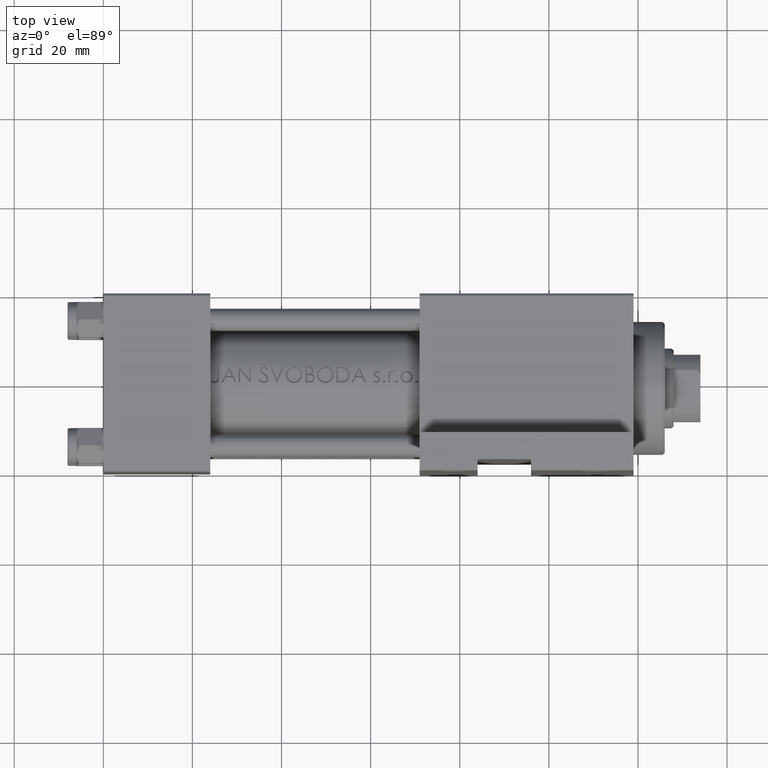
[diagram: clean part render]
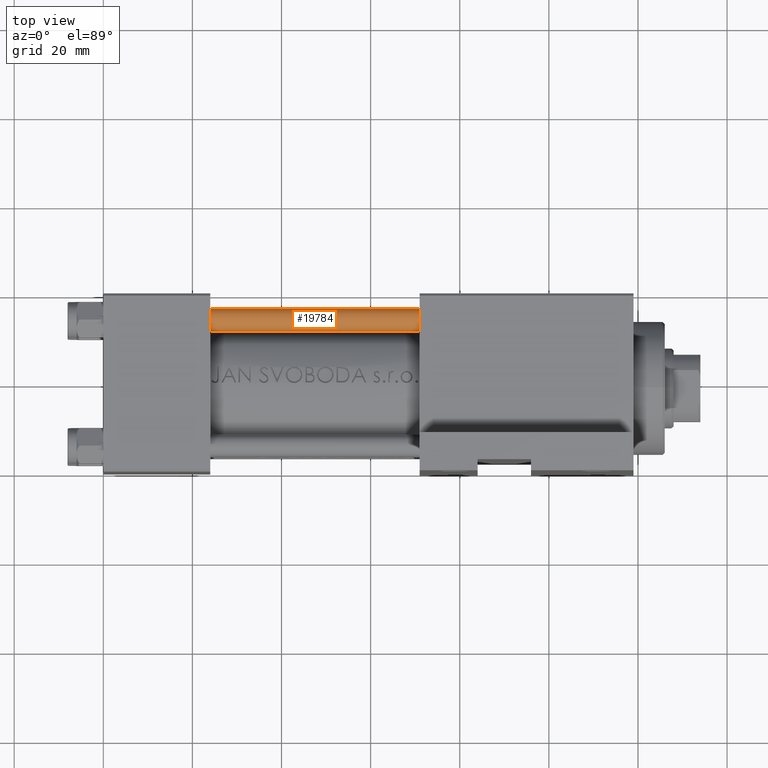
[diagram: same view with one face highlighted and labeled with its STEP entity id]
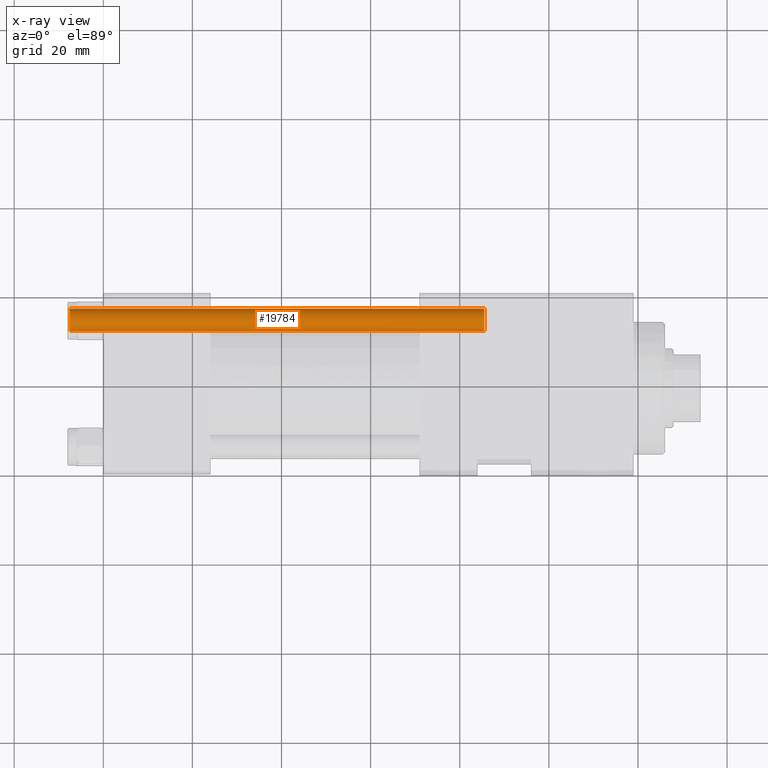
[diagram: x-ray of the same camera — body ghosted, the highlighted face saturated]
A machine part, top view. The second image highlights one B-rep face of the part: STEP entity #19784.
The next image is the same camera in x-ray: the body ghosted, the highlighted face saturated — about 0% of this face is hidden behind the body in this view.
In plain terms, the highlighted cylindrical surface (edge-blend (fillet) strip) has radius 2.5 mm, axis along (1, -0, 0).
Its self-contained STEP definition (entity closure, byte-faithful):
#1768 = DIRECTION ( 'NONE',  ( 1.000000000000000000, 0.000000000000000000, 0.000000000000000000 ) ) ;
#2512 = DIRECTION ( 'NONE',  ( -1.000000000000000000, 0.000000000000000000, 0.000000000000000000 ) ) ;
#2811 = CIRCLE ( 'NONE', #36618, 2.500000000000000000 ) ;
#4533 = VECTOR ( 'NONE', #7791, 1000.000000000000000 ) ;
#5628 = FACE_OUTER_BOUND ( 'NONE', #16982, .T. ) ;
#6494 = EDGE_CURVE ( 'NONE', #36556, #14204, #29087, .T. ) ;
#7442 = VERTEX_POINT ( 'NONE', #23039 ) ;
#7791 = DIRECTION ( 'NONE',  ( -0.000000000000000000, -0.000000000000000000, -1.000000000000000000 ) ) ;
#8552 = CARTESIAN_POINT ( 'NONE',  ( 2.500000000000000000, 3.061616997868383141E-16, 0.5000000000000004441 ) ) ;
#9140 = ORIENTED_EDGE ( 'NONE', *, *, #6494, .F. ) ;
#9666 = DIRECTION ( 'NONE',  ( 0.000000000000000000, 0.000000000000000000, -1.000000000000000000 ) ) ;
#10697 = VERTEX_POINT ( 'NONE', #25052 ) ;
#11629 = CARTESIAN_POINT ( 'NONE',  ( -2.500000000000000000, 0.000000000000000000, 94.00000000000000000 ) ) ;
#13716 = VECTOR ( 'NONE', #39662, 1000.000000000000000 ) ;
#14204 = VERTEX_POINT ( 'NONE', #8552 ) ;
#14271 = DIRECTION ( 'NONE',  ( -0.000000000000000000, -0.000000000000000000, 1.000000000000000000 ) ) ;
#15339 = EDGE_CURVE ( 'NONE', #7442, #10697, #29697, .T. ) ;
#15534 = EDGE_CURVE ( 'NONE', #36556, #7442, #39119, .T. ) ;
#16799 = AXIS2_PLACEMENT_3D ( 'NONE', #27248, #9666, #1768 ) ;
#16982 = EDGE_LOOP ( 'NONE', ( #9140, #43685, #29289, #31891 ) ) ;
#19784 = ADVANCED_FACE ( 'NONE', ( #5628 ), #31850, .T. ) ;
#23039 = CARTESIAN_POINT ( 'NONE',  ( -2.500000000000000000, 0.000000000000000000, 93.50000000000001421 ) ) ;
#25052 = CARTESIAN_POINT ( 'NONE',  ( -2.500000000000000000, 0.000000000000000000, 0.5000000000000004441 ) ) ;
#25586 = DIRECTION ( 'NONE',  ( 1.000000000000000000, 0.000000000000000000, 0.000000000000000000 ) ) ;
#25915 = CARTESIAN_POINT ( 'NONE',  ( 2.500000000000000000, 3.061616997868383141E-16, 93.50000000000001421 ) ) ;
#27248 = CARTESIAN_POINT ( 'NONE',  ( 0.000000000000000000, 0.000000000000000000, 93.50000000000001421 ) ) ;
#29087 = LINE ( 'NONE', #36297, #13716 ) ;
#29289 = ORIENTED_EDGE ( 'NONE', *, *, #15339, .T. ) ;
#29697 = LINE ( 'NONE', #11629, #4533 ) ;
#31310 = EDGE_CURVE ( 'NONE', #10697, #14204, #2811, .T. ) ;
#31850 = CYLINDRICAL_SURFACE ( 'NONE', #42325, 2.500000000000000000 ) ;
#31891 = ORIENTED_EDGE ( 'NONE', *, *, #31310, .T. ) ;
#35453 = CARTESIAN_POINT ( 'NONE',  ( 0.000000000000000000, 0.000000000000000000, 94.00000000000000000 ) ) ;
#36297 = CARTESIAN_POINT ( 'NONE',  ( 2.500000000000000000, 3.061616997868383141E-16, 94.00000000000000000 ) ) ;
#36556 = VERTEX_POINT ( 'NONE', #25915 ) ;
#36618 = AXIS2_PLACEMENT_3D ( 'NONE', #40038, #14271, #25586 ) ;
#39119 = CIRCLE ( 'NONE', #16799, 2.500000000000000000 ) ;
#39662 = DIRECTION ( 'NONE',  ( -0.000000000000000000, -0.000000000000000000, -1.000000000000000000 ) ) ;
#40038 = CARTESIAN_POINT ( 'NONE',  ( 0.000000000000000000, 0.000000000000000000, 0.5000000000000004441 ) ) ;
#42325 = AXIS2_PLACEMENT_3D ( 'NONE', #35453, #42433, #2512 ) ;
#42433 = DIRECTION ( 'NONE',  ( -0.000000000000000000, -0.000000000000000000, -1.000000000000000000 ) ) ;
#43685 = ORIENTED_EDGE ( 'NONE', *, *, #15534, .T. ) ;